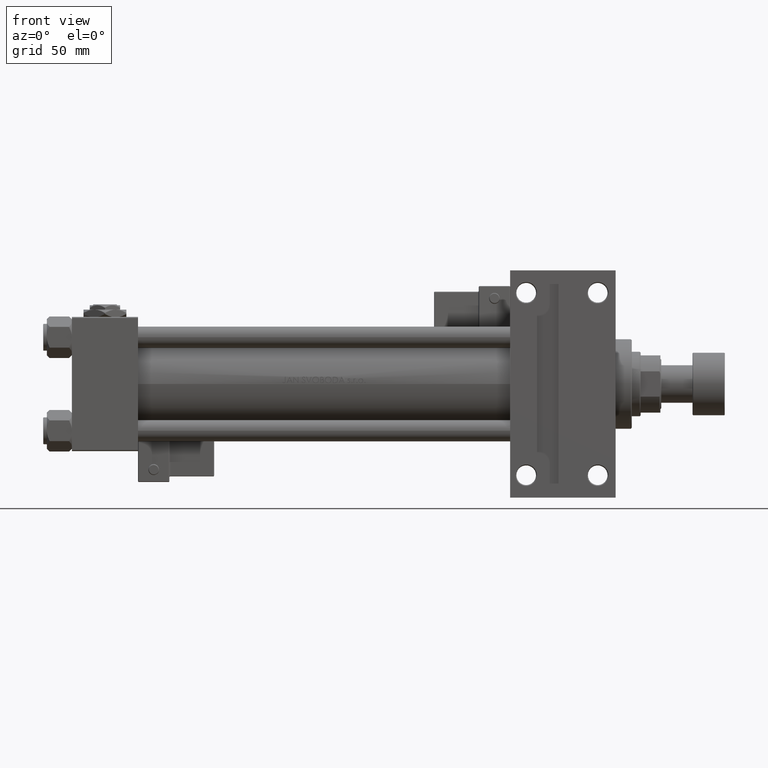
[diagram: clean part render]
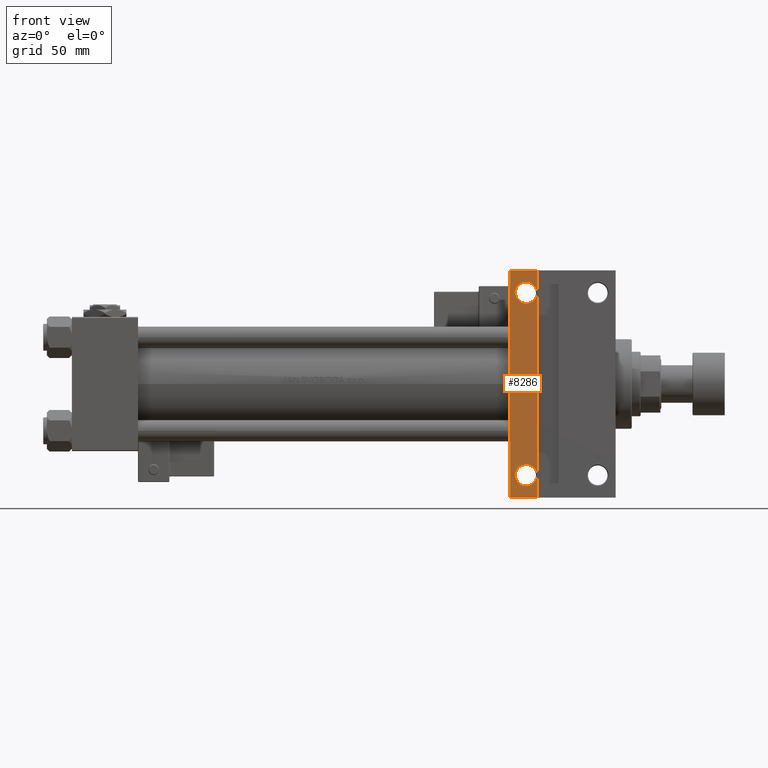
[diagram: same view with one face highlighted and labeled with its STEP entity id]
A machine part, front view. The second image highlights one B-rep face of the part: STEP entity #8286.
In plain terms, the highlighted planar face has unit normal (0, -1, 0).
Its self-contained STEP definition (entity closure, byte-faithful):
#1256 = AXIS2_PLACEMENT_3D ( 'NONE', #23940, #11481, #52277 ) ;
#1439 = ORIENTED_EDGE ( 'NONE', *, *, #44307, .T. ) ;
#1652 = DIRECTION ( 'NONE',  ( 0.000000000000000000, 1.000000000000000000, 0.000000000000000000 ) ) ;
#4283 = VERTEX_POINT ( 'NONE', #30329 ) ;
#4930 = VERTEX_POINT ( 'NONE', #22004 ) ;
#5188 = DIRECTION ( 'NONE',  ( -1.000000000000000000, 0.000000000000000000, 0.000000000000000000 ) ) ;
#5412 = EDGE_CURVE ( 'NONE', #4283, #23455, #32915, .T. ) ;
#5445 = DIRECTION ( 'NONE',  ( -0.000000000000000000, -0.000000000000000000, 1.000000000000000000 ) ) ;
#5888 = FACE_BOUND ( 'NONE', #38168, .T. ) ;
#8286 = ADVANCED_FACE ( 'NONE', ( #13823, #5888, #29995 ), #9863, .T. ) ;
#9313 = VECTOR ( 'NONE', #1652, 1000.000000000000000 ) ;
#9863 = PLANE ( 'NONE',  #50796 ) ;
#9928 = CARTESIAN_POINT ( 'NONE',  ( 245.0000000000000000, 37.50000000000000000, -37.50000000000000000 ) ) ;
#10414 = DIRECTION ( 'NONE',  ( -1.000000000000000000, 0.000000000000000000, 0.000000000000000000 ) ) ;
#11481 = DIRECTION ( 'NONE',  ( -0.000000000000000000, -0.000000000000000000, 1.000000000000000000 ) ) ;
#11999 = CARTESIAN_POINT ( 'NONE',  ( 245.0000000000000284, 63.49999999999997158, -37.50000000000000000 ) ) ;
#13279 = ORIENTED_EDGE ( 'NONE', *, *, #26059, .F. ) ;
#13610 = VERTEX_POINT ( 'NONE', #51777 ) ;
#13823 = FACE_OUTER_BOUND ( 'NONE', #34381, .T. ) ;
#14649 = LINE ( 'NONE', #9928, #41792 ) ;
#16400 = ORIENTED_EDGE ( 'NONE', *, *, #33256, .T. ) ;
#16521 = AXIS2_PLACEMENT_3D ( 'NONE', #49901, #38763, #10414 ) ;
#17773 = VERTEX_POINT ( 'NONE', #34967 ) ;
#17926 = VECTOR ( 'NONE', #47497, 1000.000000000000000 ) ;
#18059 = DIRECTION ( 'NONE',  ( -1.000000000000000000, -0.000000000000000000, -0.000000000000000000 ) ) ;
#19126 = ORIENTED_EDGE ( 'NONE', *, *, #32379, .T. ) ;
#21090 = AXIS2_PLACEMENT_3D ( 'NONE', #45976, #5445, #5188 ) ;
#22004 = CARTESIAN_POINT ( 'NONE',  ( 245.0000000000000000, -63.50000000000002842, -37.50000000000000000 ) ) ;
#22059 = DIRECTION ( 'NONE',  ( 0.000000000000000000, 0.000000000000000000, -1.000000000000000000 ) ) ;
#23455 = VERTEX_POINT ( 'NONE', #39717 ) ;
#23650 = VERTEX_POINT ( 'NONE', #31163 ) ;
#23940 = CARTESIAN_POINT ( 'NONE',  ( 253.9999999999999432, -51.00000000000000711, -37.50000000000000000 ) ) ;
#24708 = ORIENTED_EDGE ( 'NONE', *, *, #40060, .T. ) ;
#25042 = DIRECTION ( 'NONE',  ( -0.000000000000000000, -0.000000000000000000, 1.000000000000000000 ) ) ;
#25248 = CARTESIAN_POINT ( 'NONE',  ( 304.0000000000000000, 37.50000000000000000, -37.50000000000000000 ) ) ;
#26059 = EDGE_CURVE ( 'NONE', #13610, #32054, #41647, .T. ) ;
#26090 = DIRECTION ( 'NONE',  ( 0.000000000000000000, -1.000000000000000000, 0.000000000000000000 ) ) ;
#26727 = CARTESIAN_POINT ( 'NONE',  ( 260.0000000000000000, -63.49999999999995737, -37.50000000000000000 ) ) ;
#27231 = AXIS2_PLACEMENT_3D ( 'NONE', #37743, #25042, #41987 ) ;
#27974 = CARTESIAN_POINT ( 'NONE',  ( 260.0000000000000000, 63.49999999999997158, -37.50000000000000000 ) ) ;
#29995 = FACE_BOUND ( 'NONE', #41805, .T. ) ;
#30329 = CARTESIAN_POINT ( 'NONE',  ( 248.0004999999999598, 51.00000000000000711, -37.50000000000000000 ) ) ;
#30510 = CARTESIAN_POINT ( 'NONE',  ( 245.0000000000000000, -63.50000000000002842, -37.50000000000000000 ) ) ;
#31163 = CARTESIAN_POINT ( 'NONE',  ( 259.9994999999999550, -51.00000000000000711, -37.50000000000000000 ) ) ;
#31541 = ORIENTED_EDGE ( 'NONE', *, *, #5412, .T. ) ;
#32054 = VERTEX_POINT ( 'NONE', #27974 ) ;
#32379 = EDGE_CURVE ( 'NONE', #41039, #32054, #36111, .T. ) ;
#32915 = CIRCLE ( 'NONE', #21090, 5.999499999999990507 ) ;
#33256 = EDGE_CURVE ( 'NONE', #23455, #4283, #50077, .T. ) ;
#34265 = VECTOR ( 'NONE', #18059, 1000.000000000000000 ) ;
#34381 = EDGE_LOOP ( 'NONE', ( #13279, #24708, #43499, #19126 ) ) ;
#34967 = CARTESIAN_POINT ( 'NONE',  ( 248.0004999999999598, -51.00000000000000711, -37.50000000000000000 ) ) ;
#35007 = CARTESIAN_POINT ( 'NONE',  ( 245.0000000000000284, 63.49999999999997158, -37.50000000000000000 ) ) ;
#36111 = LINE ( 'NONE', #11999, #17926 ) ;
#36171 = ORIENTED_EDGE ( 'NONE', *, *, #39820, .T. ) ;
#36806 = CIRCLE ( 'NONE', #1256, 5.999499999999990507 ) ;
#37743 = CARTESIAN_POINT ( 'NONE',  ( 253.9999999999999432, 51.00000000000000711, -37.50000000000000000 ) ) ;
#38168 = EDGE_LOOP ( 'NONE', ( #31541, #16400 ) ) ;
#38211 = DIRECTION ( 'NONE',  ( -1.000000000000000000, 0.000000000000000000, -0.000000000000000000 ) ) ;
#38379 = EDGE_CURVE ( 'NONE', #41039, #4930, #14649, .T. ) ;
#38763 = DIRECTION ( 'NONE',  ( -0.000000000000000000, -0.000000000000000000, 1.000000000000000000 ) ) ;
#39356 = CIRCLE ( 'NONE', #16521, 5.999499999999990507 ) ;
#39717 = CARTESIAN_POINT ( 'NONE',  ( 259.9994999999999550, 51.00000000000000711, -37.50000000000000000 ) ) ;
#39820 = EDGE_CURVE ( 'NONE', #23650, #17773, #36806, .T. ) ;
#40060 = EDGE_CURVE ( 'NONE', #13610, #4930, #42442, .T. ) ;
#41039 = VERTEX_POINT ( 'NONE', #35007 ) ;
#41647 = LINE ( 'NONE', #26727, #9313 ) ;
#41792 = VECTOR ( 'NONE', #26090, 1000.000000000000000 ) ;
#41805 = EDGE_LOOP ( 'NONE', ( #1439, #36171 ) ) ;
#41987 = DIRECTION ( 'NONE',  ( -1.000000000000000000, 0.000000000000000000, 0.000000000000000000 ) ) ;
#42442 = LINE ( 'NONE', #30510, #34265 ) ;
#43499 = ORIENTED_EDGE ( 'NONE', *, *, #38379, .F. ) ;
#44307 = EDGE_CURVE ( 'NONE', #17773, #23650, #39356, .T. ) ;
#45976 = CARTESIAN_POINT ( 'NONE',  ( 253.9999999999999432, 51.00000000000000711, -37.50000000000000000 ) ) ;
#47497 = DIRECTION ( 'NONE',  ( 1.000000000000000000, 0.000000000000000000, 0.000000000000000000 ) ) ;
#49901 = CARTESIAN_POINT ( 'NONE',  ( 253.9999999999999432, -51.00000000000000711, -37.50000000000000000 ) ) ;
#50077 = CIRCLE ( 'NONE', #27231, 5.999499999999990507 ) ;
#50796 = AXIS2_PLACEMENT_3D ( 'NONE', #25248, #22059, #38211 ) ;
#51777 = CARTESIAN_POINT ( 'NONE',  ( 260.0000000000000000, -63.49999999999995737, -37.50000000000000000 ) ) ;
#52277 = DIRECTION ( 'NONE',  ( -1.000000000000000000, 0.000000000000000000, 0.000000000000000000 ) ) ;